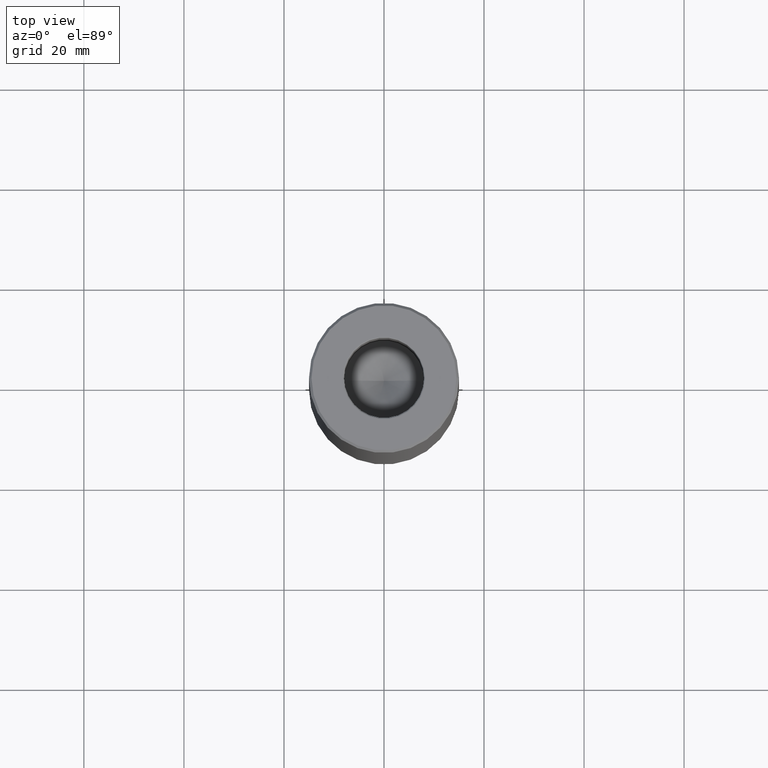
[diagram: clean part render]
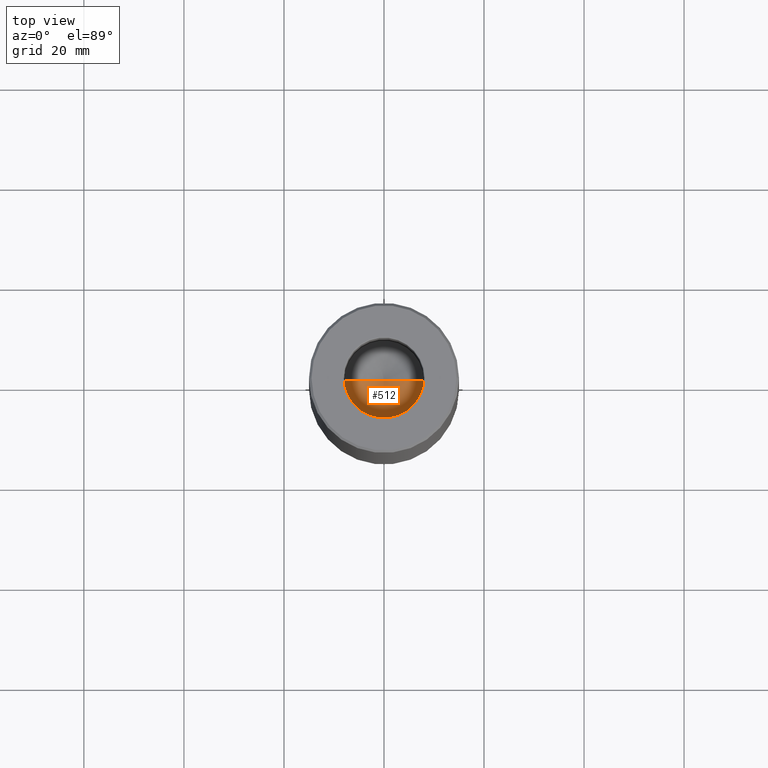
[diagram: same view with one face highlighted and labeled with its STEP entity id]
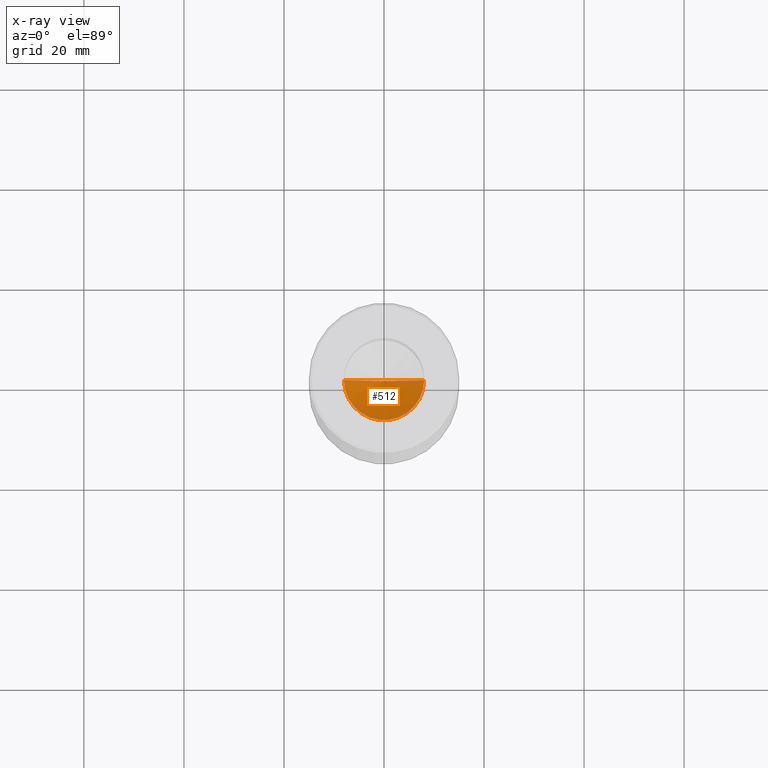
[diagram: x-ray of the same camera — body ghosted, the highlighted face saturated]
A machine part, top view. The second image highlights one B-rep face of the part: STEP entity #512.
The next image is the same camera in x-ray: the body ghosted, the highlighted face saturated — about 8% of this face is hidden behind the body in this view.
In plain terms, the highlighted conical surface has half-angle 59 deg.
Its self-contained STEP definition (entity closure, byte-faithful):
#28 = DIRECTION ( 'NONE',  ( 0.8571673007021117785, 0.000000000000000000, 0.5150380749100550437 ) ) ;
#52 = CARTESIAN_POINT ( 'NONE',  ( 0.000000000000000000, 0.000000000000000000, -30.00000000000000000 ) ) ;
#100 = AXIS2_PLACEMENT_3D ( 'NONE', #631, #286, #388 ) ;
#125 = VERTEX_POINT ( 'NONE', #425 ) ;
#128 = CARTESIAN_POINT ( 'NONE',  ( 7.999999999999994671, 0.000000000000000000, -30.00000000000000000 ) ) ;
#146 = FACE_OUTER_BOUND ( 'NONE', #271, .T. ) ;
#201 = VECTOR ( 'NONE', #28, 1000.000000000000000 ) ;
#203 = DIRECTION ( 'NONE',  ( -0.000000000000000000, -0.000000000000000000, 1.000000000000000000 ) ) ;
#236 = EDGE_CURVE ( 'NONE', #467, #246, #372, .T. ) ;
#246 = VERTEX_POINT ( 'NONE', #128 ) ;
#271 = EDGE_LOOP ( 'NONE', ( #345, #473, #429 ) ) ;
#279 = CARTESIAN_POINT ( 'NONE',  ( 7.999999999999994671, 0.000000000000000000, -30.00000000000000000 ) ) ;
#286 = DIRECTION ( 'NONE',  ( -0.000000000000000000, -0.000000000000000000, 1.000000000000000000 ) ) ;
#299 = CIRCLE ( 'NONE', #100, 7.999999999999994671 ) ;
#302 = DIRECTION ( 'NONE',  ( 1.000000000000000000, 0.000000000000000000, 0.000000000000000000 ) ) ;
#308 = VECTOR ( 'NONE', #342, 1000.000000000000000 ) ;
#313 = EDGE_CURVE ( 'NONE', #125, #246, #299, .T. ) ;
#325 = EDGE_CURVE ( 'NONE', #467, #125, #383, .T. ) ;
#331 = AXIS2_PLACEMENT_3D ( 'NONE', #52, #203, #302 ) ;
#342 = DIRECTION ( 'NONE',  ( -0.8571673007021117785, 1.049727191138617956E-16, 0.5150380749100550437 ) ) ;
#345 = ORIENTED_EDGE ( 'NONE', *, *, #236, .F. ) ;
#347 = CARTESIAN_POINT ( 'NONE',  ( -8.296478875781655917E-15, 0.000000000000000000, -34.80688495222048573 ) ) ;
#372 = LINE ( 'NONE', #279, #201 ) ;
#383 = LINE ( 'NONE', #624, #308 ) ;
#388 = DIRECTION ( 'NONE',  ( 1.000000000000000000, 0.000000000000000000, 0.000000000000000000 ) ) ;
#425 = CARTESIAN_POINT ( 'NONE',  ( -7.999999999999994671, 9.797174393178819741E-16, -30.00000000000000000 ) ) ;
#429 = ORIENTED_EDGE ( 'NONE', *, *, #313, .T. ) ;
#467 = VERTEX_POINT ( 'NONE', #347 ) ;
#473 = ORIENTED_EDGE ( 'NONE', *, *, #325, .T. ) ;
#512 = ADVANCED_FACE ( 'NONE', ( #146 ), #605, .F. ) ;
#605 = CONICAL_SURFACE ( 'NONE', #331, 7.999999999999994671, 1.029744258676653423 ) ;
#624 = CARTESIAN_POINT ( 'NONE',  ( -7.999999999999994671, 9.797174393178819741E-16, -30.00000000000000000 ) ) ;
#631 = CARTESIAN_POINT ( 'NONE',  ( 0.000000000000000000, 0.000000000000000000, -30.00000000000000000 ) ) ;